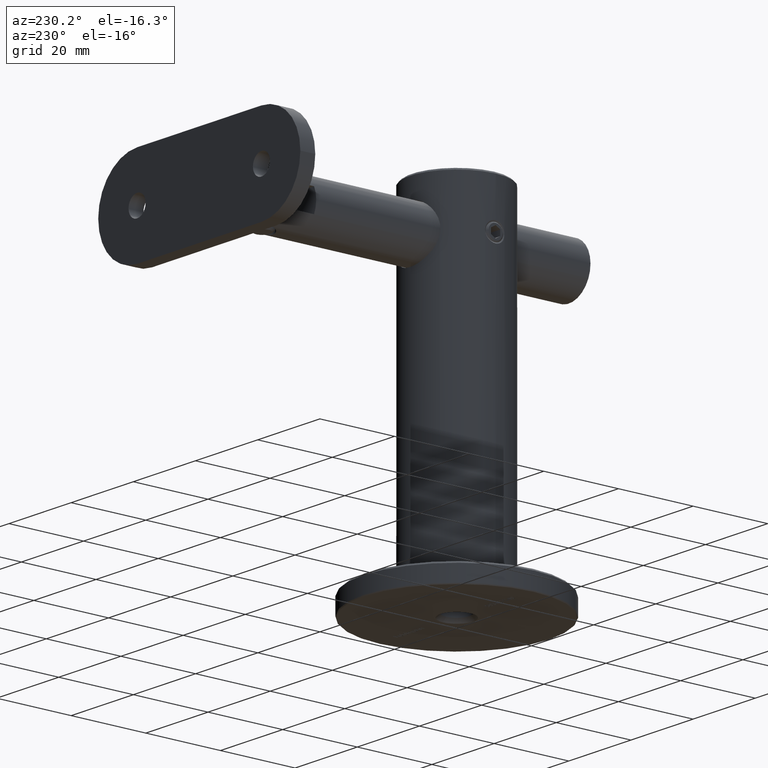
[diagram: clean part render]
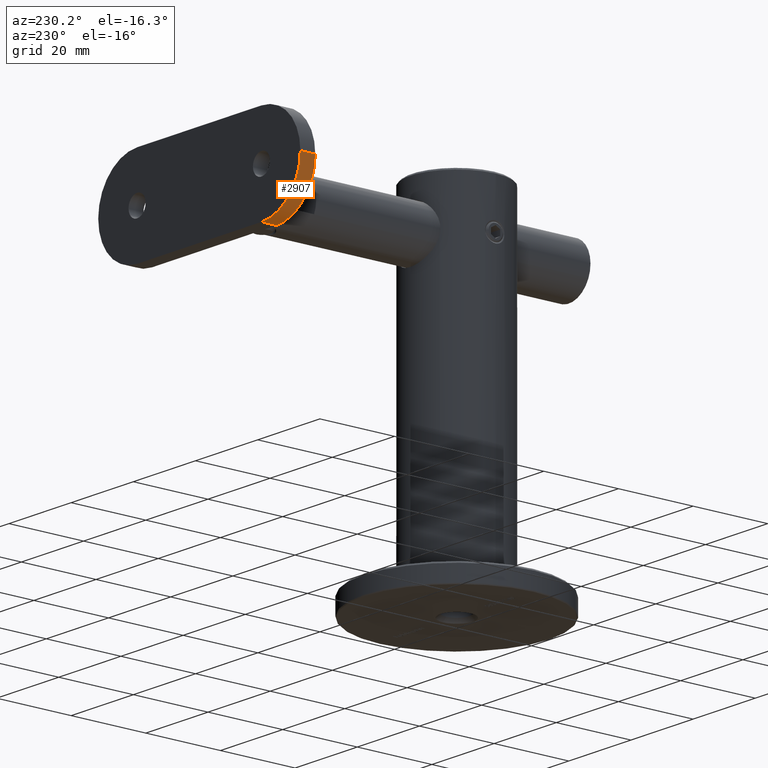
[diagram: same view with one face highlighted and labeled with its STEP entity id]
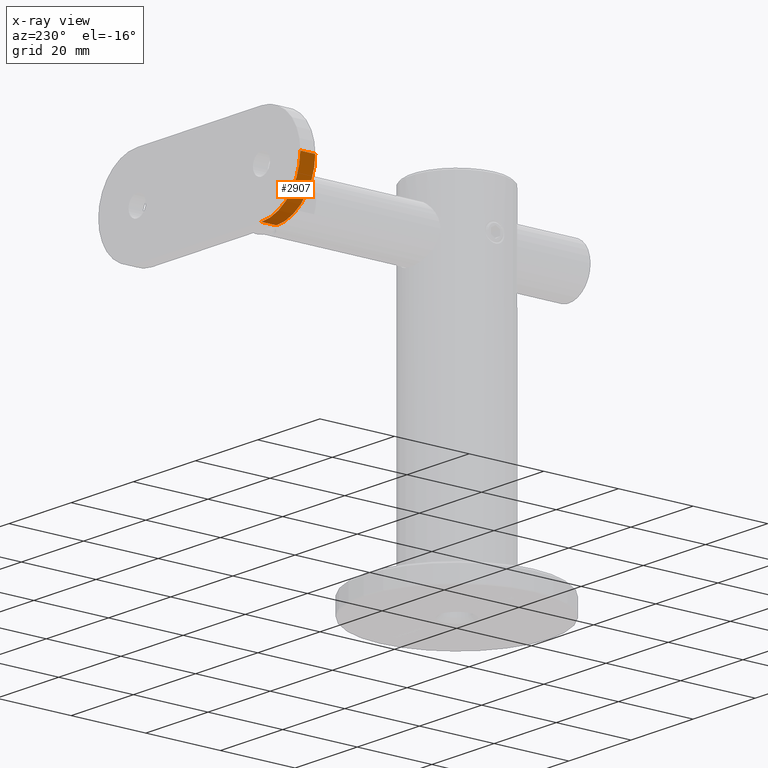
[diagram: x-ray of the same camera — body ghosted, the highlighted face saturated]
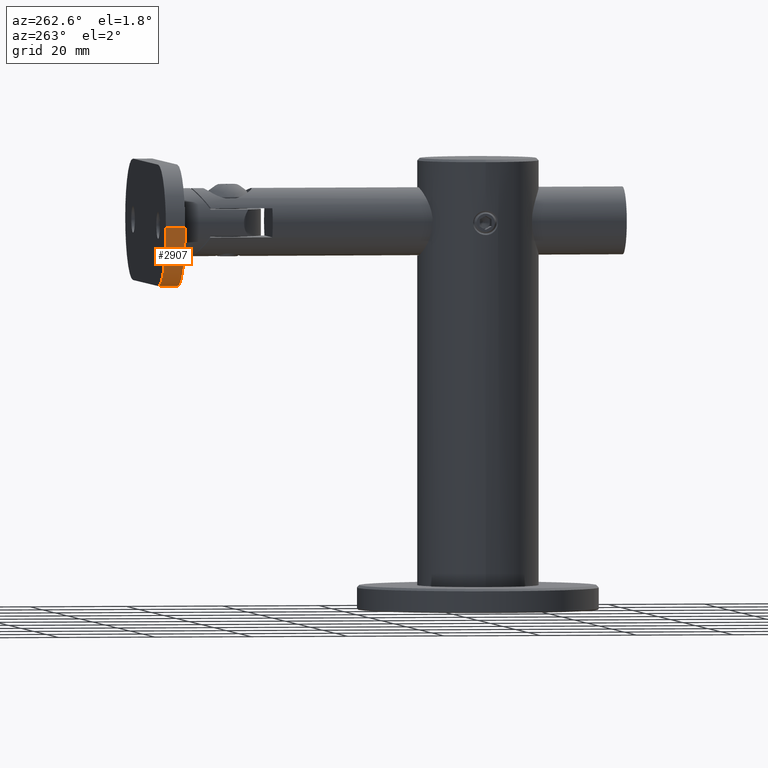
[diagram: same view with one face highlighted and labeled with its STEP entity id]
A machine part, auxiliary view. The second image highlights one B-rep face of the part: STEP entity #2907.
The next image is the same camera in x-ray: the body ghosted, the highlighted face saturated — about 0% of this face is hidden behind the body in this view.
A second angle (auxiliary view) of the same face is appended — the face is thin or edge-on in the first view.
In plain terms, the highlighted cylindrical surface (partial cylindrical patch) has radius 12.5 mm, axis along (-0, -1, -0).
Its self-contained STEP definition (entity closure, byte-faithful):
#474 = CARTESIAN_POINT ( 'NONE',  ( 0.0000000000000000000, -3.370833141065685400E-015, 20.00000000000000000 ) ) ;
#1141 = AXIS2_PLACEMENT_3D ( 'NONE', #14740, #14675, #2686 ) ;
#1168 = EDGE_CURVE ( 'NONE', #10453, #19440, #6251, .T. ) ;
#1936 = DIRECTION ( 'NONE',  ( 0.0000000000000000000, 0.0000000000000000000, 1.000000000000000000 ) ) ;
#2686 = DIRECTION ( 'NONE',  ( 8.881784197001252300E-016, 0.0000000000000000000, -1.000000000000000000 ) ) ;
#2907 = ADVANCED_FACE ( 'NONE', ( #3646 ), #10652, .T. ) ;
#3055 = CARTESIAN_POINT ( 'NONE',  ( 0.0000000000000000000, 0.0000000000000000000, 20.00000000000000000 ) ) ;
#3646 = FACE_OUTER_BOUND ( 'NONE', #18028, .T. ) ;
#4327 = EDGE_CURVE ( 'NONE', #10453, #16671, #9715, .T. ) ;
#4806 = EDGE_CURVE ( 'NONE', #19440, #6577, #9236, .T. ) ;
#5354 = AXIS2_PLACEMENT_3D ( 'NONE', #3055, #12071, #6121 ) ;
#5740 = VECTOR ( 'NONE', #6232, 1000.000000000000000 ) ;
#5964 = ORIENTED_EDGE ( 'NONE', *, *, #4806, .F. ) ;
#6121 = DIRECTION ( 'NONE',  ( 0.0000000000000000000, 0.0000000000000000000, -1.000000000000000000 ) ) ;
#6232 = DIRECTION ( 'NONE',  ( 0.0000000000000000000, 1.000000000000000000, 0.0000000000000000000 ) ) ;
#6251 = CIRCLE ( 'NONE', #14270, 12.50000000000000000 ) ;
#6577 = VERTEX_POINT ( 'NONE', #17777 ) ;
#9236 = LINE ( 'NONE', #10268, #14875 ) ;
#9565 = DIRECTION ( 'NONE',  ( -0.0000000000000000000, -1.000000000000000000, 0.0000000000000000000 ) ) ;
#9611 = ORIENTED_EDGE ( 'NONE', *, *, #1168, .F. ) ;
#9653 = ORIENTED_EDGE ( 'NONE', *, *, #4327, .T. ) ;
#9715 = LINE ( 'NONE', #10536, #5740 ) ;
#10268 = CARTESIAN_POINT ( 'NONE',  ( -12.50000000000000000, 3.999999999999996400, 20.00000000000000000 ) ) ;
#10453 = VERTEX_POINT ( 'NONE', #12653 ) ;
#10536 = CARTESIAN_POINT ( 'NONE',  ( 0.0000000000000000000, 0.0000000000000000000, 32.50000000000000000 ) ) ;
#10652 = CYLINDRICAL_SURFACE ( 'NONE', #5354, 12.50000000000000000 ) ;
#10807 = CARTESIAN_POINT ( 'NONE',  ( -12.50000000000000000, -3.370833141065685400E-015, 20.00000000000000000 ) ) ;
#12071 = DIRECTION ( 'NONE',  ( 0.0000000000000000000, -1.000000000000000000, 0.0000000000000000000 ) ) ;
#12653 = CARTESIAN_POINT ( 'NONE',  ( 0.0000000000000000000, -3.370833141065685400E-015, 32.50000000000000000 ) ) ;
#13221 = CARTESIAN_POINT ( 'NONE',  ( 0.0000000000000000000, 3.999999999999996400, 32.50000000000000000 ) ) ;
#14270 = AXIS2_PLACEMENT_3D ( 'NONE', #474, #9565, #1936 ) ;
#14675 = DIRECTION ( 'NONE',  ( -0.0000000000000000000, 1.000000000000000000, -0.0000000000000000000 ) ) ;
#14740 = CARTESIAN_POINT ( 'NONE',  ( 0.0000000000000000000, 3.999999999999996400, 20.00000000000000000 ) ) ;
#14875 = VECTOR ( 'NONE', #15008, 1000.000000000000000 ) ;
#15008 = DIRECTION ( 'NONE',  ( -0.0000000000000000000, 1.000000000000000000, -0.0000000000000000000 ) ) ;
#15681 = ORIENTED_EDGE ( 'NONE', *, *, #16749, .F. ) ;
#16663 = CIRCLE ( 'NONE', #1141, 12.50000000000000000 ) ;
#16671 = VERTEX_POINT ( 'NONE', #13221 ) ;
#16749 = EDGE_CURVE ( 'NONE', #6577, #16671, #16663, .T. ) ;
#17777 = CARTESIAN_POINT ( 'NONE',  ( -12.50000000000000000, 3.999999999999996400, 20.00000000000000000 ) ) ;
#18028 = EDGE_LOOP ( 'NONE', ( #15681, #5964, #9611, #9653 ) ) ;
#19440 = VERTEX_POINT ( 'NONE', #10807 ) ;